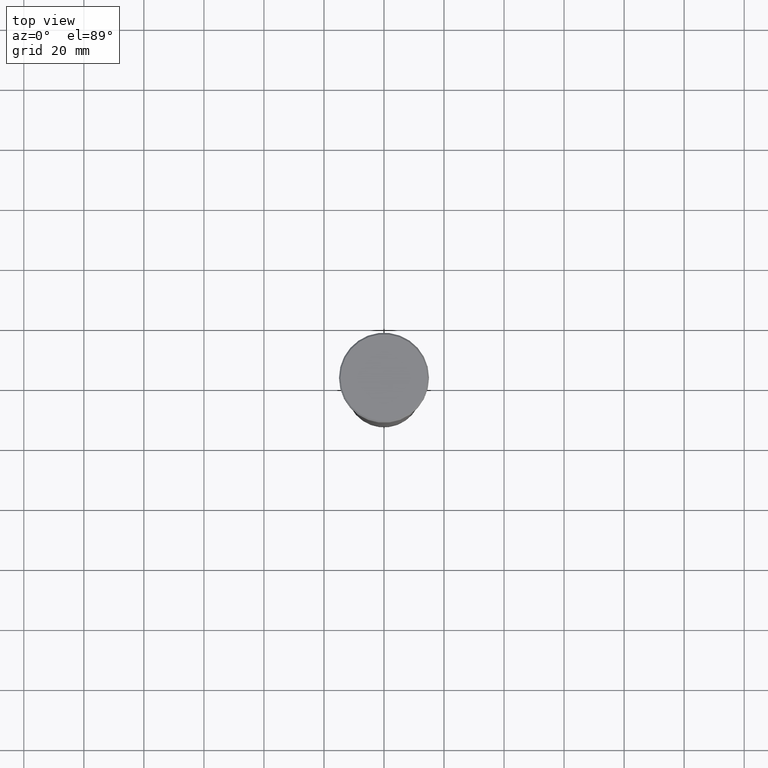
[diagram: clean part render]
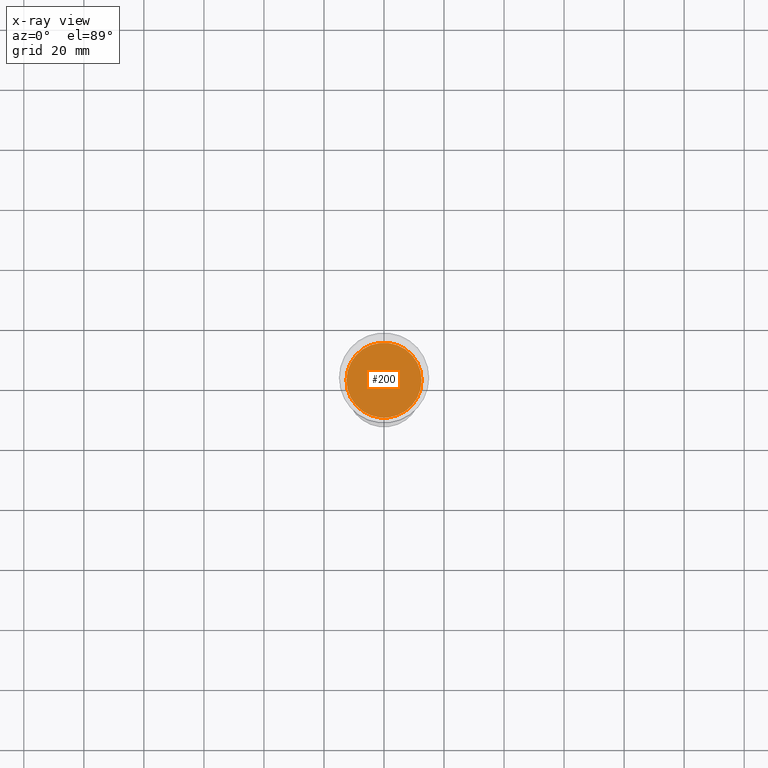
[diagram: x-ray — body ghosted, one internal face saturated and labeled with its STEP entity id]
A machine part, top view, then the same camera in x-ray: the body is ghosted and one INTERNAL B-rep face — a face not visible from any outside direction — is saturated and labeled: STEP entity #200.
In plain terms, the highlighted planar face has unit normal (0, 0, -1).
Its self-contained STEP definition (entity closure, byte-faithful):
#65 = CARTESIAN_POINT ( 'NONE',  ( 0.000000000000000000, 0.000000000000000000, -50.00000000000000000 ) ) ;
#137 = CARTESIAN_POINT ( 'NONE',  ( 0.000000000000000000, 0.000000000000000000, -50.00000000000000000 ) ) ;
#200 = ADVANCED_FACE ( 'NONE', ( #866 ), #213, .F. ) ;
#212 = EDGE_CURVE ( 'NONE', #405, #713, #521, .T. ) ;
#213 = PLANE ( 'NONE',  #973 ) ;
#405 = VERTEX_POINT ( 'NONE', #583 ) ;
#465 = CARTESIAN_POINT ( 'NONE',  ( 12.50000000000000000, 0.000000000000000000, -50.00000000000000000 ) ) ;
#501 = ORIENTED_EDGE ( 'NONE', *, *, #212, .T. ) ;
#506 = AXIS2_PLACEMENT_3D ( 'NONE', #65, #966, #885 ) ;
#521 = CIRCLE ( 'NONE', #506, 12.50000000000000000 ) ;
#544 = DIRECTION ( 'NONE',  ( -1.000000000000000000, 0.000000000000000000, -0.000000000000000000 ) ) ;
#583 = CARTESIAN_POINT ( 'NONE',  ( -12.50000000000000000, 1.530808498934191521E-15, -50.00000000000000000 ) ) ;
#606 = CARTESIAN_POINT ( 'NONE',  ( 0.000000000000000000, 0.000000000000000000, -50.00000000000000000 ) ) ;
#625 = EDGE_LOOP ( 'NONE', ( #701, #501 ) ) ;
#698 = DIRECTION ( 'NONE',  ( 0.000000000000000000, 0.000000000000000000, -1.000000000000000000 ) ) ;
#701 = ORIENTED_EDGE ( 'NONE', *, *, #1019, .T. ) ;
#713 = VERTEX_POINT ( 'NONE', #465 ) ;
#857 = DIRECTION ( 'NONE',  ( -0.000000000000000000, -0.000000000000000000, 1.000000000000000000 ) ) ;
#866 = FACE_OUTER_BOUND ( 'NONE', #625, .T. ) ;
#885 = DIRECTION ( 'NONE',  ( 1.000000000000000000, 0.000000000000000000, 0.000000000000000000 ) ) ;
#924 = DIRECTION ( 'NONE',  ( 1.000000000000000000, 0.000000000000000000, 0.000000000000000000 ) ) ;
#946 = AXIS2_PLACEMENT_3D ( 'NONE', #606, #857, #924 ) ;
#966 = DIRECTION ( 'NONE',  ( -0.000000000000000000, -0.000000000000000000, 1.000000000000000000 ) ) ;
#973 = AXIS2_PLACEMENT_3D ( 'NONE', #137, #698, #544 ) ;
#977 = CIRCLE ( 'NONE', #946, 12.50000000000000000 ) ;
#1019 = EDGE_CURVE ( 'NONE', #713, #405, #977, .T. ) ;